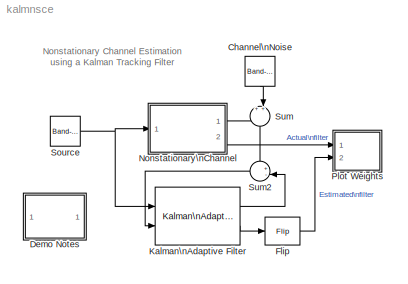
MODEL kalmnsce
KIND model
BLOCK [Reference] Channel\nNoise  REF=simulink/Sources/Band-Limited\nWhite Noise
  Cov = .3
  Ports = [0, 1]
  ShowPortLabels = on
  SourceBlock = simulink/Sources/Band-Limited\nWhite Noise
  SourceType = Band-Limited White Noise.
  Ts = 1
  VectorParams1D = on
  seed = 12345
BLOCK [SubSystem] Demo Notes
  MaskDisplay = disp('Info')
  MaskIconFrame = on
  MaskIconOpaque = on
  MaskIconRotate = none
  MaskIconUnits = autoscale
  Ports = []
  TreatAsAtomicUnit = off
BLOCK [Reference] Flip  REF=dspindex/Flip
  Ports = [1, 1]
  SourceBlock = dspindex/Flip
  SourceType = Flip
  dim = Columns
BLOCK [Reference] Kalman\nAdaptive Filter  REF=dspadpt3/Kalman\nAdaptive Filter
  Adapt = off
  Jmin = 0.3
  K0 = 0.5
  Ntaps = 5
  Ports = [2, 2]
  RstPort = None
  ShowPortLabels = on
  SourceBlock = dspadpt3/Kalman\nAdaptive Filter
  SourceType = Kalman Adaptive Filter
  ic0 = 0
  q = 0.1
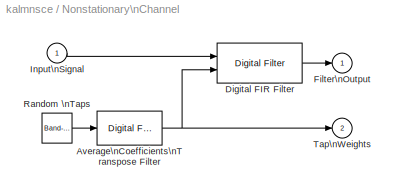
BLOCK [SubSystem] Nonstationary\nChannel
  MaskCallbackString = ||
  MaskDescription = Nonstationary Nth Order Noisy Channel
  MaskDisplay = disp('Nonstationary\\nSystem')
  MaskEnableString = on,on,on
  MaskHelp = Implementation of a nonstationary filter.  Nonstationarity parameter controls the filter tap nonstationarity, and may take values in the range 0 <= a < 1.  The first system output is the actual filter taps over time, and the second output is a vector of instantaneous tap weight estimates (\"unknowns\")
  MaskIconFrame = on
  MaskIconOpaque = on
  MaskIconRotate = none
  MaskIconUnits = autoscale
  MaskPromptString = Filter Order:|Nonstationarity Parameter (0 to 1):|Sample Time:
  MaskStyleString = edit,edit,edit
  MaskTabNameString = ,,
  MaskToolTipString = on,on,on
  MaskTunableValueString = on,on,on
  MaskValueString = 5|0.96|1
  MaskVarAliasString = ,,
  MaskVariables = N=@1;a=@2;Ts=@3;
  MaskVisibilityString = on,on,on
  Ports = [1, 2]
  TreatAsAtomicUnit = off
BLOCK [Reference] Nonstationary\nChannel/Average\nCoefficients\nTranspose Filter  REF=dsparch4/Digital Filter
  AllPoleFiltStruct = Direct form transposed
  BiQuadCoeffs = [1 0.3 0.4 1 0.1 0.2]
  CoeffSource = Specify via dialog
  DenCoeffs = [1 -a]
  FIRFiltStruct = Direct form
  FiltPerSampPopup = One filter per frame
  IC = 0
  ICden = 0
  ICnum = 0
  IIRFiltStruct = Direct form II transposed
  LatticeCoeffs = [0.2 0.4]
  NumCoeffs = [1 2]
  Ports = [1, 1]
  SourceBlock = dsparch4/Digital Filter
  SourceType = Digital Filter
  TypePopup = IIR (all poles)
  accumFracLength = 30
  accumMode = Same as product output
  accumWordLength = 32
  additionalParams = off
  allowOverrides = on
  denIgnore = on
  firstCoeffFracLength = 15
  firstCoeffMode = Same as input
  firstCoeffWordLength = 16
  memoryFracLength = 15
  memoryMode = Same as accumulator
  memoryWordLength = 16
  outputFracLength = 15
  outputMode = Same as accumulator
  outputWordLength = 16
  overflowMode = off
  prodOutputFracLength = 30
  prodOutputMode = Same as input
  prodOutputWordLength = 32
  roundingMode = Floor
  secondCoeffFracLength = 15
  secondCoeffMode = Same as numerator
  secondCoeffWordLength = 16
  showAcc = off
  showCoeff = off
  showMem = off
  showMpy = off
  showOut = off
  thirdCoeffFracLength = 15
  thirdCoeffMode = Same as input
  thirdCoeffWordLength = 16
BLOCK [Reference] Nonstationary\nChannel/Digital FIR Filter  REF=dsparch4/Digital Filter
  AllPoleFiltStruct = Direct form
  BiQuadCoeffs = [1 0.3 0.4 1 0.1 0.2]
  CoeffSource = Input port(s)
  DenCoeffs = [1 0.1]
  FIRFiltStruct = Direct form transposed
  FiltPerSampPopup = One filter per sample
  IC = 0
  ICden = 0
  ICnum = 0
  IIRFiltStruct = Direct form II transposed
  LatticeCoeffs = [0.2 0.4]
  NumCoeffs = [1 2]
  Ports = [2, 1]
  SourceBlock = dsparch4/Digital Filter
  SourceType = Digital Filter
  TypePopup = FIR (all zeros)
  accumFracLength = 30
  accumMode = Same as product output
  accumWordLength = 32
  additionalParams = off
  allowOverrides = on
  denIgnore = on
  firstCoeffFracLength = 15
  firstCoeffMode = Same as input
  firstCoeffWordLength = 16
  memoryFracLength = 15
  memoryMode = Same as accumulator
  memoryWordLength = 16
  outputFracLength = 15
  outputMode = Same as accumulator
  outputWordLength = 16
  overflowMode = off
  prodOutputFracLength = 30
  prodOutputMode = Same as input
  prodOutputWordLength = 32
  roundingMode = Floor
  secondCoeffFracLength = 15
  secondCoeffMode = Same as numerator
  secondCoeffWordLength = 16
  showAcc = off
  showCoeff = off
  showMem = off
  showMpy = off
  showOut = off
  thirdCoeffFracLength = 15
  thirdCoeffMode = Same as input
  thirdCoeffWordLength = 16
BLOCK [Outport] Nonstationary\nChannel/Filter\nOutput
  IconDisplay = Port number
  InitialOutput = 0
BLOCK [Inport] Nonstationary\nChannel/Input\nSignal
  IconDisplay = Port number
BLOCK [Reference] Nonstationary\nChannel/Random \nTaps  REF=simulink/Sources/Band-Limited\nWhite Noise
  Cov = ones(N,1)
  Ports = [0, 1]
  ShowPortLabels = on
  SourceBlock = simulink/Sources/Band-Limited\nWhite Noise
  SourceType = Band-Limited White Noise.
  Ts = Ts
  VectorParams1D = on
  seed = round(rand(N,1)*1000)
BLOCK [Outport] Nonstationary\nChannel/Tap\nWeights
  IconDisplay = Port number
  InitialOutput = 0
  Port = 2
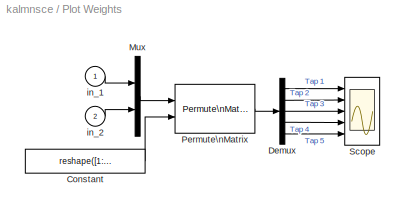
BLOCK [SubSystem] Plot Weights
  MaskDisplay = disp('Plot\\nWeights')
  MaskIconFrame = on
  MaskIconOpaque = on
  MaskIconRotate = none
  MaskIconUnits = autoscale
  Ports = [2]
  ShowPortLabels = off
  TreatAsAtomicUnit = off
BLOCK [Constant] Plot Weights/Constant
  Value = reshape([1:5;6:10],10,1)
BLOCK [Demux] Plot Weights/Demux
  Outputs = 5
  Ports = [1, 5]
BLOCK [Mux] Plot Weights/Mux
  DisplayOption = bar
  Inputs = 2
  Ports = [2, 1]
BLOCK [Reference] Plot Weights/Permute\nMatrix  REF=dspmtrx3/Permute\nMatrix
  Ports = [2, 1]
  SourceBlock = dspmtrx3/Permute\nMatrix
  SourceType = Permute Matrix
  ZeroOneIdxMode = One-based
  checkDims = off
  errmode = Clip Index
  mode = Rows
BLOCK [Scope] Plot Weights/Scope
  DataFormat = Structure
  NumInputPorts = 5
  Ports = [5]
  SampleInput = on
  TimeRange = 300
  YMax = 10~10~10~10~10
  YMin = -10~-10~-10~-10~-10
  ZoomMode = xonly
BLOCK [Inport] Plot Weights/in_1
  IconDisplay = Port number
BLOCK [Inport] Plot Weights/in_2
  IconDisplay = Port number
  Port = 2
BLOCK [Reference] Source  REF=simulink/Sources/Band-Limited\nWhite Noise
  Cov = [0.1]
  Ports = [0, 1]
  ShowPortLabels = on
  SourceBlock = simulink/Sources/Band-Limited\nWhite Noise
  SourceType = Band-Limited White Noise.
  Ts = 1
  VectorParams1D = on
  seed = [23341]
BLOCK [Sum] Sum
  IconShape = round
  Inputs = ++|
  Ports = [2, 1]
BLOCK [Sum] Sum2
  IconShape = round
  Inputs = +-|
  Ports = [2, 1]
ANNOTATION (root): Nonstationary Channel Estimation\nusing a Kalman Tracking Filter
ANNOTATION Demo Notes: \nNonstationary Channel Estimation\nusing a Kalman Tracking Filter\n
ANNOTATION Demo Notes: \nThis demonstrates the ability of a Kalman filter to track\nthe time-varying weights of a nonstationary 5th order\nFIR filter.\n\n When run, a plot is made of each tap weight over time,\nwith the \"true\" filter taps drawn in yellow, and the\nestimates of those tap weights in magenta. Each of \nthe 5 tap weights is plotted in a separate axis.\n\nFor more information on Kalman filtering, see\nS. H...<+67ch>
LINE Channel\nNoise:1 -> Sum:2
LINE Flip:1 -> Plot Weights:2
LINE Kalman\nAdaptive Filter:1 -> Sum2:2
LINE Kalman\nAdaptive Filter:2 -> Flip:1
NET Nonstationary\nChannel/Average\nCoefficients\nTranspose Filter:1 -> Nonstationary\nChannel/Digital FIR Filter:2, Nonstationary\nChannel/Tap\nWeights:1
LINE Nonstationary\nChannel/Digital FIR Filter:1 -> Nonstationary\nChannel/Filter\nOutput:1
LINE Nonstationary\nChannel/Input\nSignal:1 -> Nonstationary\nChannel/Digital FIR Filter:1
LINE Nonstationary\nChannel/Random \nTaps:1 -> Nonstationary\nChannel/Average\nCoefficients\nTranspose Filter:1
LINE Nonstationary\nChannel:1 -> Sum:1
LINE Nonstationary\nChannel:2 -> Plot Weights:1
LINE Plot Weights/Constant:1 -> Plot Weights/Permute\nMatrix:2
LINE Plot Weights/Demux:1 -> Plot Weights/Scope:1
LINE Plot Weights/Demux:2 -> Plot Weights/Scope:2
LINE Plot Weights/Demux:3 -> Plot Weights/Scope:3
LINE Plot Weights/Demux:4 -> Plot Weights/Scope:4
LINE Plot Weights/Demux:5 -> Plot Weights/Scope:5
LINE Plot Weights/Mux:1 -> Plot Weights/Permute\nMatrix:1
LINE Plot Weights/Permute\nMatrix:1 -> Plot Weights/Demux:1
LINE Plot Weights/in_1:1 -> Plot Weights/Mux:1
LINE Plot Weights/in_2:1 -> Plot Weights/Mux:2
NET Source:1 -> Kalman\nAdaptive Filter:1, Nonstationary\nChannel:1
LINE Sum2:1 -> Kalman\nAdaptive Filter:2
LINE Sum:1 -> Sum2:1
note: NET lines group one-source signal fan-out (src -> all destinations, sorted); 1:1 wires keep LINE
